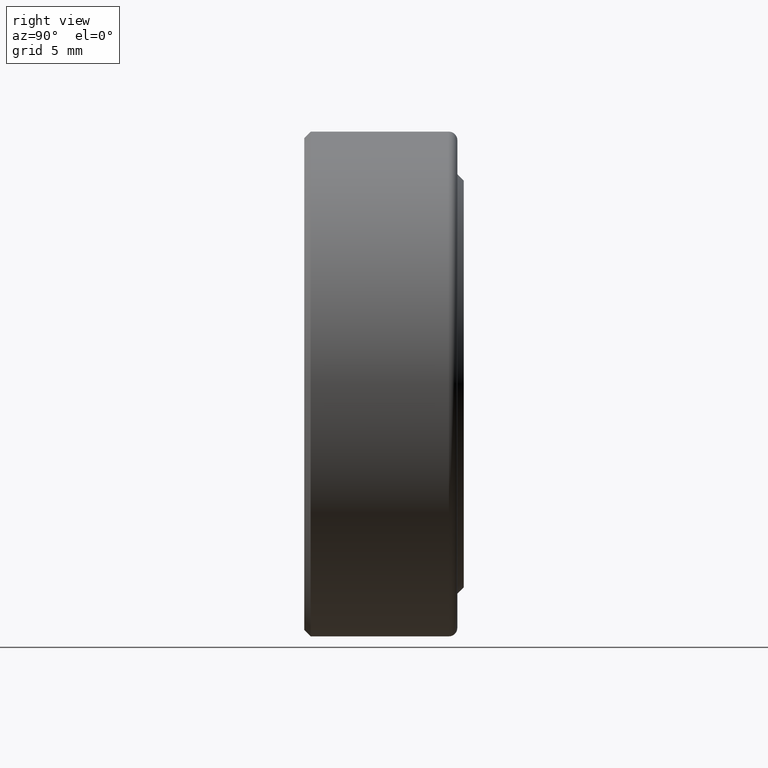
[diagram: clean part render]
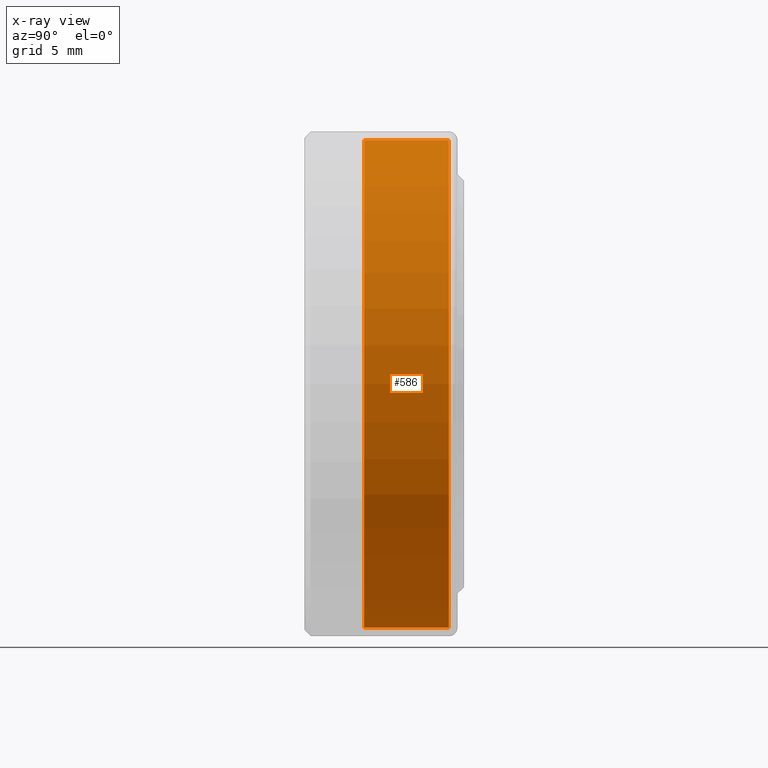
[diagram: x-ray — body ghosted, one internal face saturated and labeled with its STEP entity id]
A machine part, right view, then the same camera in x-ray: the body is ghosted and one INTERNAL B-rep face — a face not visible from any outside direction — is saturated and labeled: STEP entity #586.
In plain terms, the highlighted cylindrical surface (bore or boss wall) has radius 14.5732 mm, axis along (-0, 1, -0).
Its self-contained STEP definition (entity closure, byte-faithful):
#18 = EDGE_CURVE ( 'NONE', #428, #428, #479, .T. ) ;
#63 = VERTEX_POINT ( 'NONE', #300 ) ;
#78 = CARTESIAN_POINT ( 'NONE',  ( 0.0000000000000000000, 0.1406250000000000300, 0.5737499999999999800 ) ) ;
#112 = EDGE_LOOP ( 'NONE', ( #440 ) ) ;
#134 = FACE_OUTER_BOUND ( 'NONE', #484, .T. ) ;
#180 = DIRECTION ( 'NONE',  ( 0.0000000000000000000, 0.0000000000000000000, 1.000000000000000000 ) ) ;
#187 = CIRCLE ( 'NONE', #250, 0.5737499999999999800 ) ;
#198 = EDGE_CURVE ( 'NONE', #63, #63, #187, .T. ) ;
#214 = CARTESIAN_POINT ( 'NONE',  ( 0.0000000000000000000, 0.1406250000000000300, 0.0000000000000000000 ) ) ;
#234 = CARTESIAN_POINT ( 'NONE',  ( 0.0000000000000000000, 0.3399999999999999700, 0.0000000000000000000 ) ) ;
#248 = ORIENTED_EDGE ( 'NONE', *, *, #18, .F. ) ;
#250 = AXIS2_PLACEMENT_3D ( 'NONE', #234, #269, #180 ) ;
#269 = DIRECTION ( 'NONE',  ( -0.0000000000000000000, 1.000000000000000000, -0.0000000000000000000 ) ) ;
#271 = FACE_OUTER_BOUND ( 'NONE', #112, .T. ) ;
#300 = CARTESIAN_POINT ( 'NONE',  ( 0.0000000000000000000, 0.3399999999999999700, 0.5737499999999999800 ) ) ;
#348 = DIRECTION ( 'NONE',  ( 0.0000000000000000000, 0.0000000000000000000, 1.000000000000000000 ) ) ;
#372 = AXIS2_PLACEMENT_3D ( 'NONE', #394, #522, #348 ) ;
#386 = AXIS2_PLACEMENT_3D ( 'NONE', #214, #588, #536 ) ;
#394 = CARTESIAN_POINT ( 'NONE',  ( 0.0000000000000000000, 0.0000000000000000000, 0.0000000000000000000 ) ) ;
#428 = VERTEX_POINT ( 'NONE', #78 ) ;
#440 = ORIENTED_EDGE ( 'NONE', *, *, #198, .T. ) ;
#479 = CIRCLE ( 'NONE', #386, 0.5737499999999999800 ) ;
#484 = EDGE_LOOP ( 'NONE', ( #248 ) ) ;
#522 = DIRECTION ( 'NONE',  ( -0.0000000000000000000, 1.000000000000000000, -0.0000000000000000000 ) ) ;
#536 = DIRECTION ( 'NONE',  ( 0.0000000000000000000, 0.0000000000000000000, 1.000000000000000000 ) ) ;
#559 = CYLINDRICAL_SURFACE ( 'NONE', #372, 0.5737499999999999800 ) ;
#586 = ADVANCED_FACE ( 'NONE', ( #134, #271 ), #559, .F. ) ;
#588 = DIRECTION ( 'NONE',  ( -0.0000000000000000000, 1.000000000000000000, -0.0000000000000000000 ) ) ;